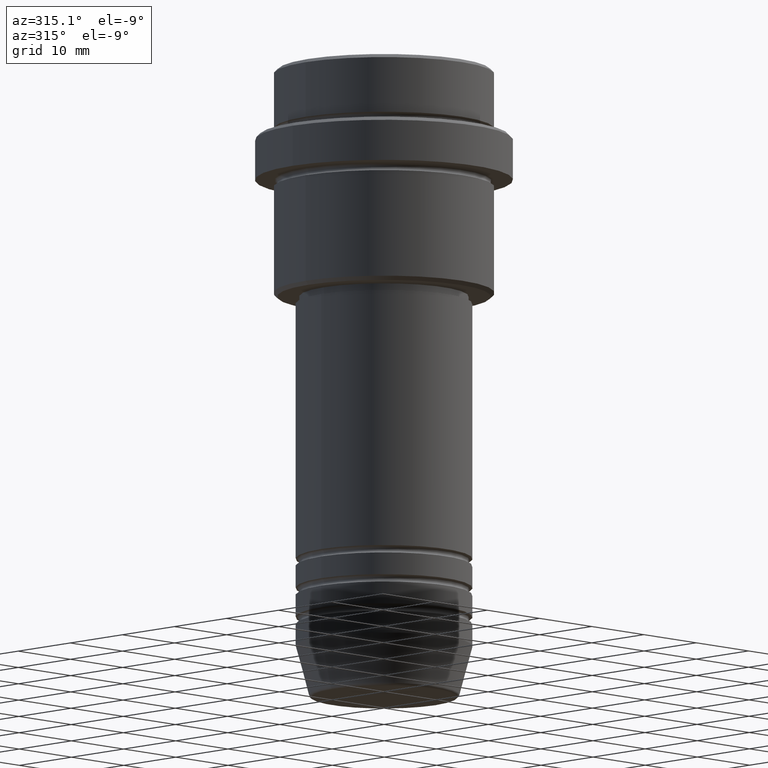
[diagram: clean part render]
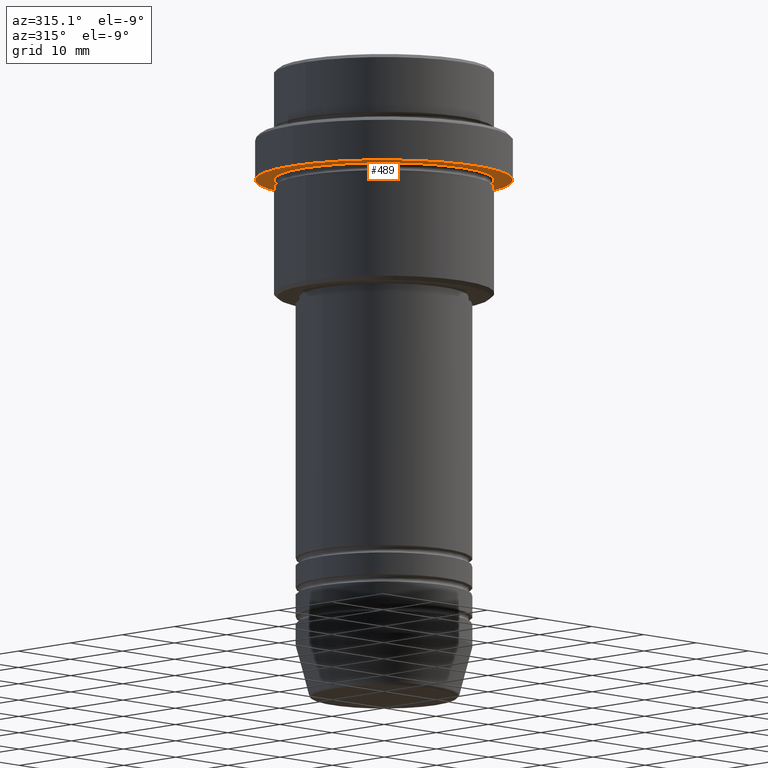
[diagram: same view with one face highlighted and labeled with its STEP entity id]
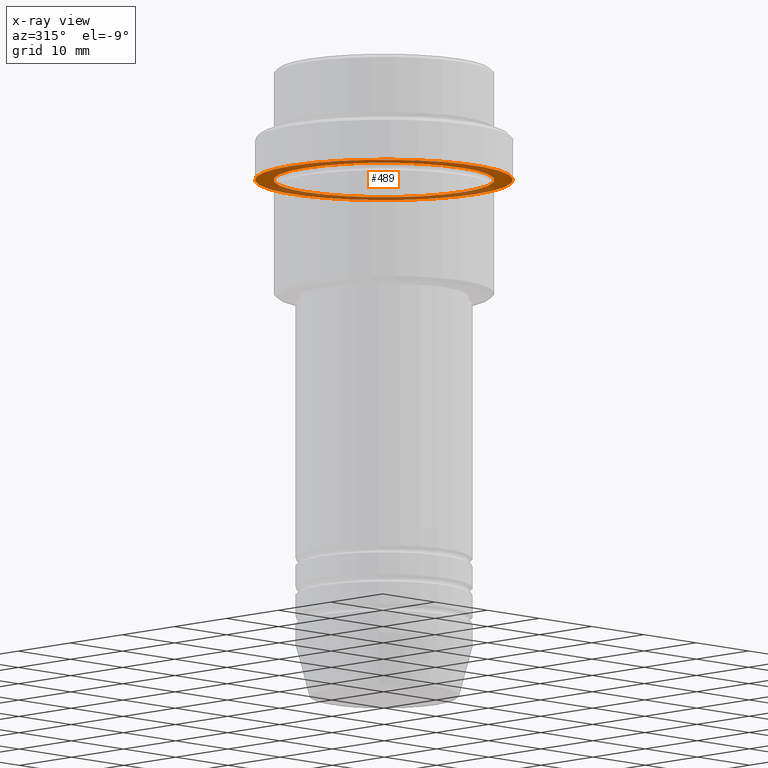
[diagram: x-ray of the same camera — body ghosted, the highlighted face saturated]
A machine part, auxiliary view. The second image highlights one B-rep face of the part: STEP entity #489.
The next image is the same camera in x-ray: the body ghosted, the highlighted face saturated — about 36% of this face is hidden behind the body in this view.
In plain terms, the highlighted planar face has unit normal (0, 0, -1).
Its self-contained STEP definition (entity closure, byte-faithful):
#23 = ORIENTED_EDGE ( 'NONE', *, *, #1000, .T. ) ;
#39 = EDGE_CURVE ( 'NONE', #1319, #905, #447, .T. ) ;
#43 = CARTESIAN_POINT ( 'NONE',  ( 0.000000000000000000, 17.50000000000000000, -15.00000000000000000 ) ) ;
#99 = CARTESIAN_POINT ( 'NONE',  ( 0.000000000000000000, 0.000000000000000000, -15.00000000000000000 ) ) ;
#121 = DIRECTION ( 'NONE',  ( -0.000000000000000000, -0.000000000000000000, 1.000000000000000000 ) ) ;
#161 = VERTEX_POINT ( 'NONE', #1049 ) ;
#248 = AXIS2_PLACEMENT_3D ( 'NONE', #505, #621, #516 ) ;
#293 = AXIS2_PLACEMENT_3D ( 'NONE', #468, #900, #366 ) ;
#340 = DIRECTION ( 'NONE',  ( 1.000000000000000000, 0.000000000000000000, 0.000000000000000000 ) ) ;
#346 = AXIS2_PLACEMENT_3D ( 'NONE', #99, #851, #964 ) ;
#366 = DIRECTION ( 'NONE',  ( -1.000000000000000000, 0.000000000000000000, 0.000000000000000000 ) ) ;
#447 = CIRCLE ( 'NONE', #1125, 17.50000000000000000 ) ;
#455 = DIRECTION ( 'NONE',  ( -1.000000000000000000, 0.000000000000000000, -0.000000000000000000 ) ) ;
#468 = CARTESIAN_POINT ( 'NONE',  ( 0.000000000000000000, 0.000000000000000000, -15.00000000000000000 ) ) ;
#481 = CARTESIAN_POINT ( 'NONE',  ( -14.99999999999999467, 0.000000000000000000, -15.00000000000000000 ) ) ;
#489 = ADVANCED_FACE ( 'NONE', ( #1004, #490 ), #1102, .T. ) ;
#490 = FACE_OUTER_BOUND ( 'NONE', #803, .T. ) ;
#505 = CARTESIAN_POINT ( 'NONE',  ( 0.000000000000000000, 0.000000000000000000, -15.00000000000000000 ) ) ;
#507 = VERTEX_POINT ( 'NONE', #481 ) ;
#516 = DIRECTION ( 'NONE',  ( -1.000000000000000000, 0.000000000000000000, 0.000000000000000000 ) ) ;
#533 = CIRCLE ( 'NONE', #346, 17.50000000000000000 ) ;
#621 = DIRECTION ( 'NONE',  ( -0.000000000000000000, -0.000000000000000000, 1.000000000000000000 ) ) ;
#627 = ORIENTED_EDGE ( 'NONE', *, *, #39, .F. ) ;
#671 = CARTESIAN_POINT ( 'NONE',  ( -17.50000000000000000, 2.143131898507868248E-15, -15.00000000000000000 ) ) ;
#747 = AXIS2_PLACEMENT_3D ( 'NONE', #43, #1211, #455 ) ;
#803 = EDGE_LOOP ( 'NONE', ( #627, #1115 ) ) ;
#851 = DIRECTION ( 'NONE',  ( -0.000000000000000000, -0.000000000000000000, 1.000000000000000000 ) ) ;
#867 = CARTESIAN_POINT ( 'NONE',  ( 17.50000000000000000, 0.000000000000000000, -15.00000000000000000 ) ) ;
#900 = DIRECTION ( 'NONE',  ( -0.000000000000000000, -0.000000000000000000, 1.000000000000000000 ) ) ;
#905 = VERTEX_POINT ( 'NONE', #671 ) ;
#964 = DIRECTION ( 'NONE',  ( 1.000000000000000000, 0.000000000000000000, 0.000000000000000000 ) ) ;
#1000 = EDGE_CURVE ( 'NONE', #507, #161, #1296, .T. ) ;
#1004 = FACE_BOUND ( 'NONE', #1190, .T. ) ;
#1049 = CARTESIAN_POINT ( 'NONE',  ( 14.99999999999999467, 1.836970198721029194E-15, -15.00000000000000000 ) ) ;
#1102 = PLANE ( 'NONE',  #747 ) ;
#1109 = ORIENTED_EDGE ( 'NONE', *, *, #1157, .T. ) ;
#1115 = ORIENTED_EDGE ( 'NONE', *, *, #1259, .F. ) ;
#1125 = AXIS2_PLACEMENT_3D ( 'NONE', #1397, #121, #340 ) ;
#1157 = EDGE_CURVE ( 'NONE', #161, #507, #1198, .T. ) ;
#1190 = EDGE_LOOP ( 'NONE', ( #23, #1109 ) ) ;
#1198 = CIRCLE ( 'NONE', #248, 14.99999999999999467 ) ;
#1211 = DIRECTION ( 'NONE',  ( 0.000000000000000000, 0.000000000000000000, -1.000000000000000000 ) ) ;
#1259 = EDGE_CURVE ( 'NONE', #905, #1319, #533, .T. ) ;
#1296 = CIRCLE ( 'NONE', #293, 14.99999999999999467 ) ;
#1319 = VERTEX_POINT ( 'NONE', #867 ) ;
#1397 = CARTESIAN_POINT ( 'NONE',  ( 0.000000000000000000, 0.000000000000000000, -15.00000000000000000 ) ) ;